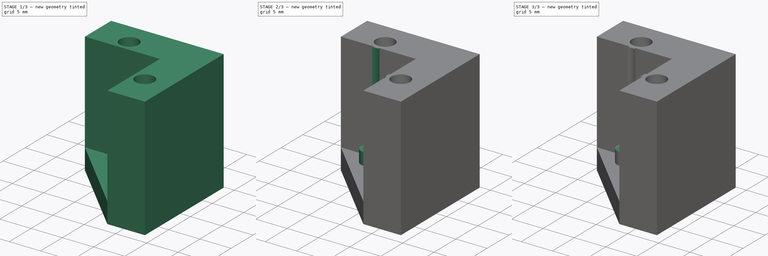
[diagram: build sequence overview — one tinted view per stage of 3, left to right]
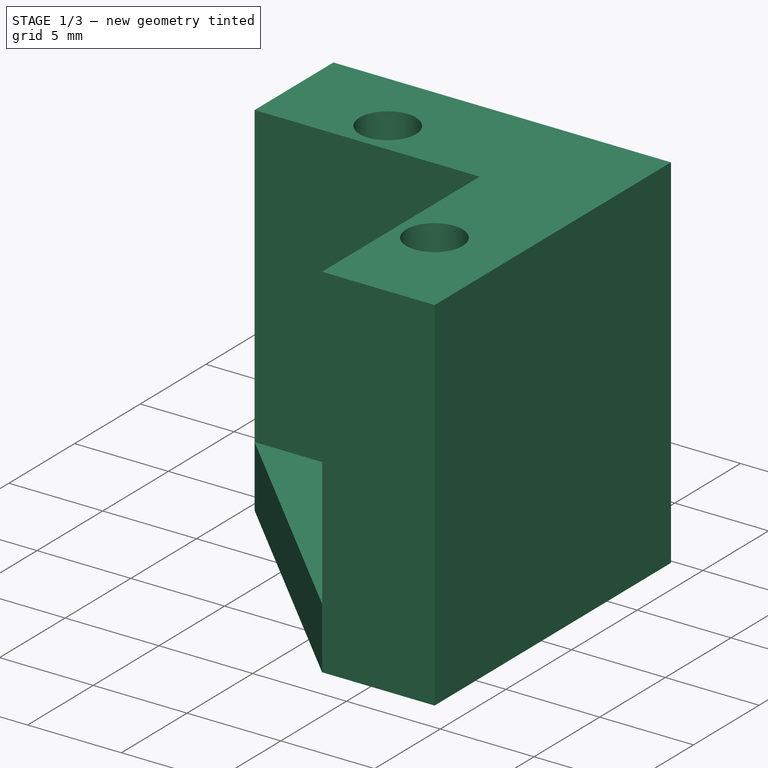
[diagram: stage 1 of 3 — iso view after this stage's code; geometry added in this stage tinted green]
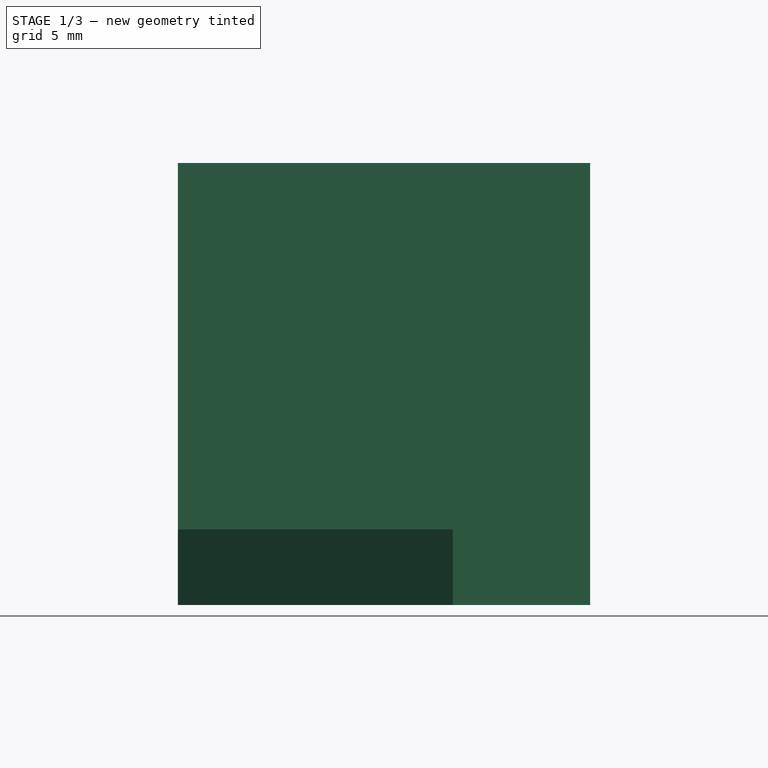
[diagram: stage 1 of 3 — front view after this stage's code; geometry added in this stage tinted green]
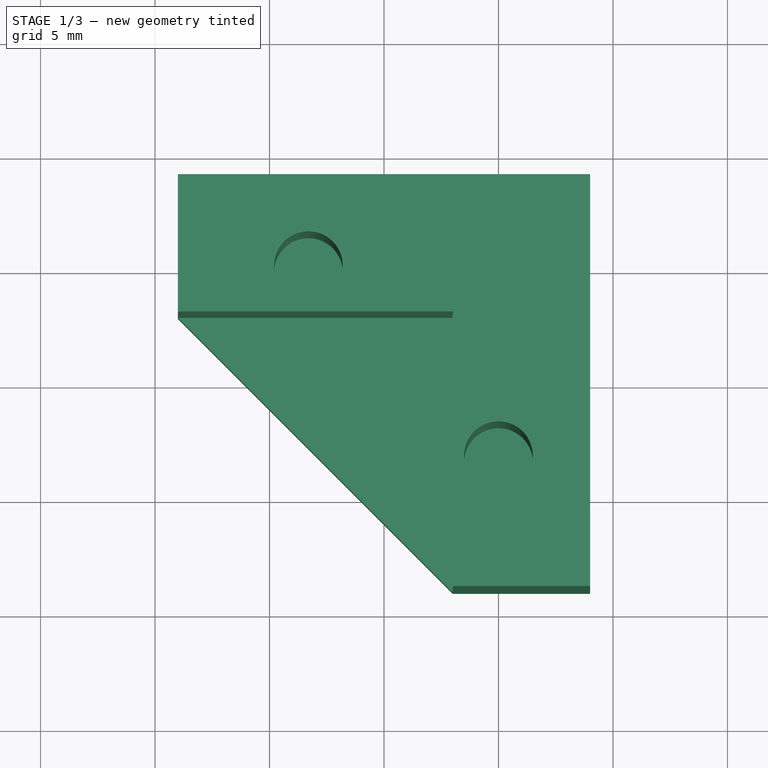
[diagram: stage 1 of 3 — top view after this stage's code; geometry added in this stage tinted green]
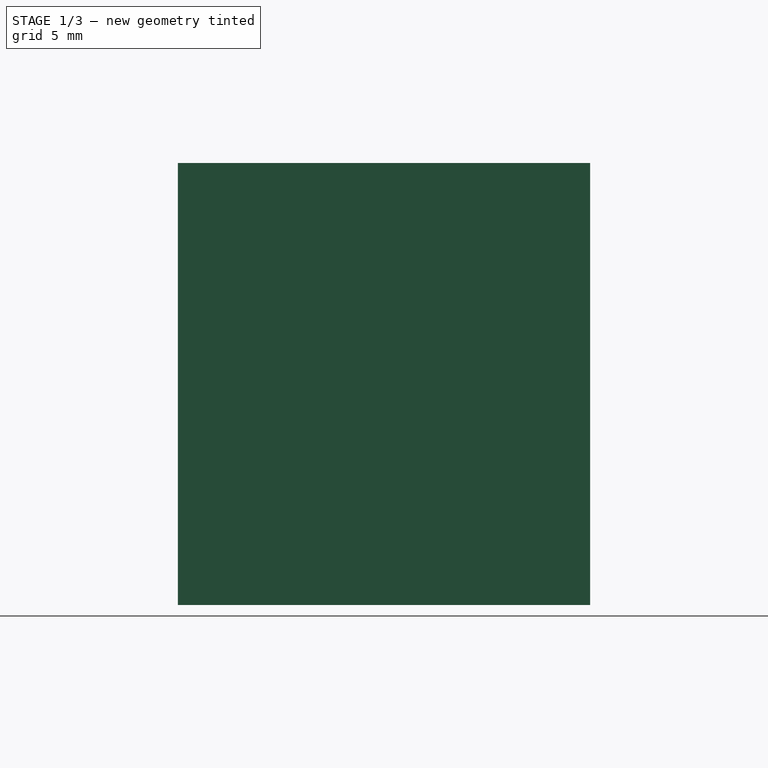
[diagram: stage 1 of 3 — right view after this stage's code; geometry added in this stage tinted green]
FCSTD DOCUMENT  (FreeCAD 0.21R33668 +26 (Git))
Label: magnet_press_jig_integrated
License: All rights reserved
LicenseURL: https://en.wikipedia.org/wiki/All_rights_reserved
objects: Sketcher::SketchObject×8, PartDesign::Plane×4, PartDesign::Pad×3, PartDesign::Pocket×3, PartDesign::Groove×1, PartDesign::Mirrored×1, PartDesign::Body×1
note: 28 computed .brp shape members not serialized (recipe doc carries the construction recipe); baked Part::Feature solids carry a one-line shape summary decoded from their .brp

FEATURE [Sketcher::SketchObject] Sketch
  FullyConstrained = true
  MapMode = 5
  Support = -> [XY_Plane]
  sketch-geometry (9):
    g0: LineSegment StartX=-9 StartY=3 StartZ=0 EndX=-9 EndY=9 EndZ=0
    g1: LineSegment StartX=-9 StartY=9 StartZ=0 EndX=9 EndY=9 EndZ=0
    g2: LineSegment StartX=9 StartY=9 StartZ=0 EndX=9 EndY=-9 EndZ=0
    g3: LineSegment StartX=9 StartY=-9 StartZ=0 EndX=3 EndY=-9 EndZ=0
    g4: GeomPoint X=0 Y=0 Z=0
    g5: LineSegment StartX=-9 StartY=3 StartZ=0 EndX=3 EndY=-9 EndZ=0
    g6: LineSegment StartX=-9 StartY=9 StartZ=0 EndX=0 EndY=0 EndZ=0
    g7: LineSegment StartX=0 StartY=0 StartZ=0 EndX=9 EndY=9 EndZ=0
    g8: LineSegment StartX=0 StartY=0 StartZ=0 EndX=9 EndY=-9 EndZ=0
  constraints (22):
    c: Coincident(g0,g1)
    c: Coincident(g1,g2)
    c: Coincident(g2,g3)
    c: Horizontal(g1)
    c: Horizontal(g3)
    c: Vertical(g0)
    c: Vertical(g2)
    c: Coincident(g4,g-1)
    c: DistanceX(g1,g1) = 18
    c: Coincident(g0,g5)
    c: Coincident(g3,g5)
    c: Equal(g3,g0)
    c: DistanceX(g3,g3) = 6
    c: Equal(g2,g1)
    c: Coincident(g6,g0)
    c: Coincident(g6,g4)
    c: Coincident(g7,g6)
    c: Coincident(g7,g1)
    c: Equal(g7,g6)
    c: Coincident(g8,g6)
    c: Coincident(g8,g2)
    c: Equal(g8,g7)
FEATURE [PartDesign::Pad] Pad
  Direction = (0,0,1)
  Length = 19.3
  Length2 = 10
  Profile = -> Sketch
  ReferenceAxis = -> Sketch [N_Axis]
  Type = 0
FEATURE [PartDesign::Plane] DatumPlane
  AttachmentOffset = pos=(0,0,3.3) rot=(0,0,1;0rad)
  Length = 60
  MapMode = 5
  Placement = pos=(0,0,3.3) rot=(0,0,1;0rad)
  ResizeMode = 0
  Support = -> [XY_Plane]
  Width = 60
FEATURE [Sketcher::SketchObject] Sketch001
  FullyConstrained = true
  MapMode = 5
  Placement = pos=(0,0,3.3) rot=(0,0,1;0rad)
  Support = -> [DatumPlane]
  sketch-geometry (3):
    g0: LineSegment StartX=-9 StartY=3 StartZ=0 EndX=3 EndY=3 EndZ=0
    g1: LineSegment StartX=3 StartY=3 StartZ=0 EndX=3 EndY=-9 EndZ=0
    g2: LineSegment StartX=3 StartY=-9 StartZ=0 EndX=-9 EndY=3 EndZ=0
  constraints (9):
    c: Horizontal(g0)
    c: Coincident(g1,g0)
    c: Vertical(g1)
    c: Coincident(g2,g1)
    c: Coincident(g2,g0)
    c: DistanceX(g0,g0) = 12
    c: Equal(g0,g1)
    c: DistanceY(g-1,g0) = 3
    c: DistanceX(g-1,g0) = 3
FEATURE [PartDesign::Pocket] Pocket
  BaseFeature = -> Pad
  Direction = (0,0,-1)
  Length = 5
  Length2 = 5
  Profile = -> Sketch001
  ReferenceAxis = -> Sketch001 [N_Axis]
  Reversed = true
  Type = 1
FEATURE [Sketcher::SketchObject] Sketch002
  FullyConstrained = true
  MapMode = 5
  Placement = pos=(0,0,3.3) rot=(0,0,1;0rad)
  Support = -> [DatumPlane]
  sketch-geometry (11):
    g0: LineSegment StartX=-3.3 StartY=1.4 StartZ=0 EndX=1.4 EndY=-3.3 EndZ=0
    g1: LineSegment StartX=-0.95 StartY=-0.95 StartZ=0 EndX=-1e-16 EndY=0 EndZ=0
    g2: GeomPoint X=3 Y=3 Z=0
    g3: ArcOfCircle CenterX=-3.3 CenterY=1.4 CenterZ=0 NormalX=0 NormalY=0 NormalZ=1 AngleXU=0 Radius=1.6 StartAngle=5.49779 EndAngle=8.63938
    g4: ArcOfCircle CenterX=1.4 CenterY=-3.3 CenterZ=0 NormalX=0 NormalY=0 NormalZ=1 AngleXU=0 Radius=1.6 StartAngle=5.49779 EndAngle=8.63938
    g5: LineSegment StartX=-4.43137 StartY=2.53137 StartZ=0 EndX=-6.69411 EndY=0.268629 EndZ=0
    g6: LineSegment StartX=-2.16863 StartY=0.268629 StartZ=0 EndX=-4.43137 EndY=-1.99411 EndZ=0
    g7: LineSegment StartX=0.268629 StartY=-2.16863 StartZ=0 EndX=-1.99411 EndY=-4.43137 EndZ=0
    g8: LineSegment StartX=2.53137 StartY=-4.43137 StartZ=0 EndX=0.268629 EndY=-6.69411 EndZ=0
    g9: LineSegment StartX=0.268629 StartY=-6.69411 StartZ=0 EndX=-1.99411 EndY=-4.43137 EndZ=0
    g10: LineSegment StartX=-4.43137 StartY=-1.99411 StartZ=0 EndX=-6.69411 EndY=0.268629 EndZ=0
  constraints (30):
    c: Angle(g-2,g0) = 0.785398
    c: Coincident(g1,g-1)
    c: Perpendicular(g0,g1)
    c: DistanceX(g1,g2) = 3
    c: DistanceY(g1,g2) = 3
    c: Coincident(g3,g0)
    c: Coincident(g4,g0)
    c: Symmetric(g3,g4,g1)
    c: DistanceX(g3,g2) = 6.3
    c: DistanceY(g3,g2) = 1.6
    c: Diameter(g4) = 3.2
    c: Equal(g4,g3)
    c: Coincident(g9,g8)
    c: Coincident(g9,g7)
    c: Coincident(g10,g6)
    c: Coincident(g10,g5)
    c: Tangent(g6,g3) = 1.5708
    c: Tangent(g7,g4) = -1.5708
    c: Perpendicular(g9,g7)
    c: Perpendicular(g8,g9)
    c: PointOnObject(g7,g0)
    c: PointOnObject(g6,g0)
    c: Equal(g9,g7)
    c: Equal(g7,g6)
    c: Perpendicular(g5,g10)
    c: Perpendicular(g6,g10)
    c: Tangent(g3,g5) = -1.5708
    c: PointOnObject(g3,g0)
    c: PointOnObject(g4,g0)
    c: Tangent(g4,g8) = 1.5708
FEATURE [PartDesign::Plane] DatumPlane001
  AttachmentOffset = pos=(0,0,19.3) rot=(0,0,1;0rad)
  Length = 60
  MapMode = 5
  Placement = pos=(0,0,19.3) rot=(0,0,1;0rad)
  ResizeMode = 0
  Support = -> [XY_Plane]
  Width = 60
FEATURE [Sketcher::SketchObject] Sketch003
  FullyConstrained = true
  MapMode = 5
  Placement = pos=(0,0,19.3) rot=(0,0,1;0rad)
  Support = -> [DatumPlane001]
  sketch-geometry (5):
    g0: Circle CenterX=-3.3 CenterY=5 CenterZ=0 NormalX=0 NormalY=0 NormalZ=1 AngleXU=0 Radius=1.5
    g1: Circle CenterX=5 CenterY=-3.3 CenterZ=0 NormalX=0 NormalY=0 NormalZ=1 AngleXU=0 Radius=1.5
    g2: LineSegment StartX=-3.3 StartY=5 StartZ=0 EndX=5 EndY=-3.3 EndZ=0
    g3: LineSegment StartX=0 StartY=0 StartZ=0 EndX=0.85 EndY=0.85 EndZ=0
    g4: GeomPoint X=3 Y=3 Z=0
  constraints (12):
    c: Coincident(g2,g0)
    c: Coincident(g2,g1)
    c: Equal(g0,g1)
    c: Diameter(g0) = 3
    c: DistanceY(g-1,g0) = 5
    c: Angle(g-2,g2) = 0.785398
    c: Coincident(g3,g-1)
    c: Perpendicular(g2,g3)
    c: Symmetric(g1,g0,g3)
    c: DistanceY(g-1,g4) = 3
    c: DistanceX(g3,g4) = 3
    c: DistanceX(g0,g4) = 6.3
FEATURE [PartDesign::Pocket] Pocket003
  BaseFeature = -> Pocket
  Direction = (0,0,-1)
  Length = 17.3
  Length2 = 5
  Profile = -> Sketch003
  ReferenceAxis = -> Sketch003 [N_Axis]
  Type = 0
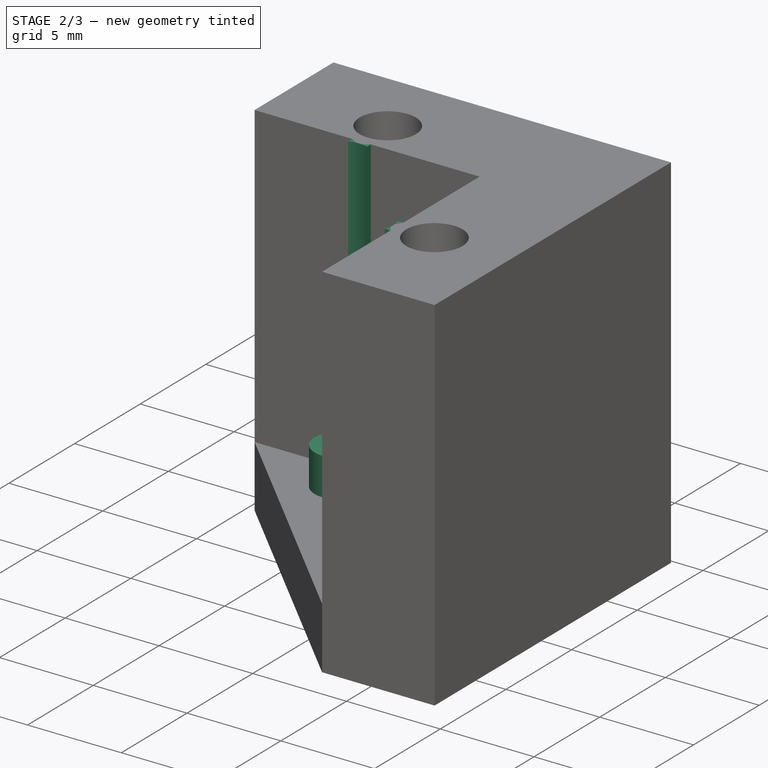
[diagram: stage 2 of 3 — iso view after this stage's code; geometry added in this stage tinted green]
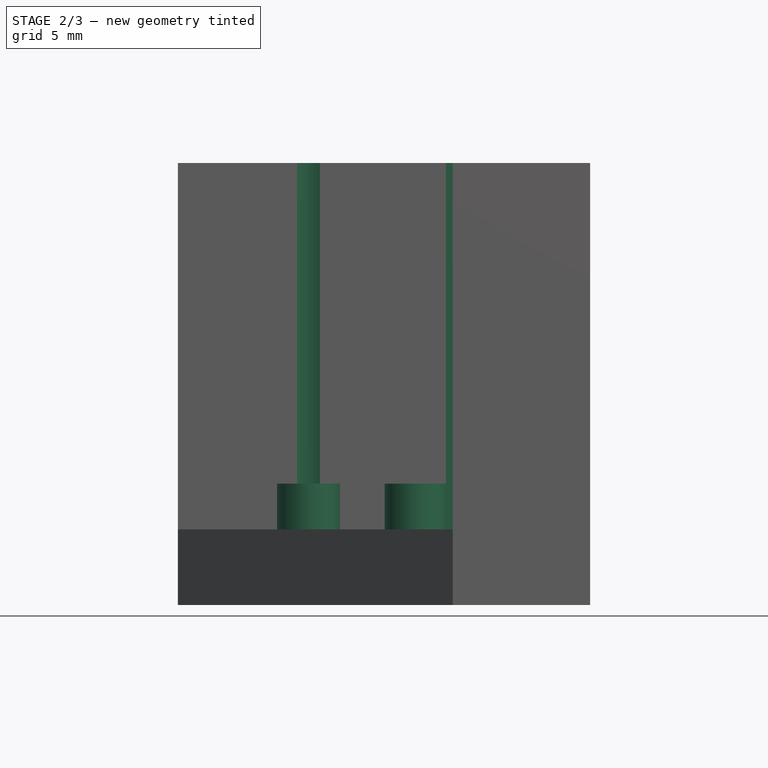
[diagram: stage 2 of 3 — front view after this stage's code; geometry added in this stage tinted green]
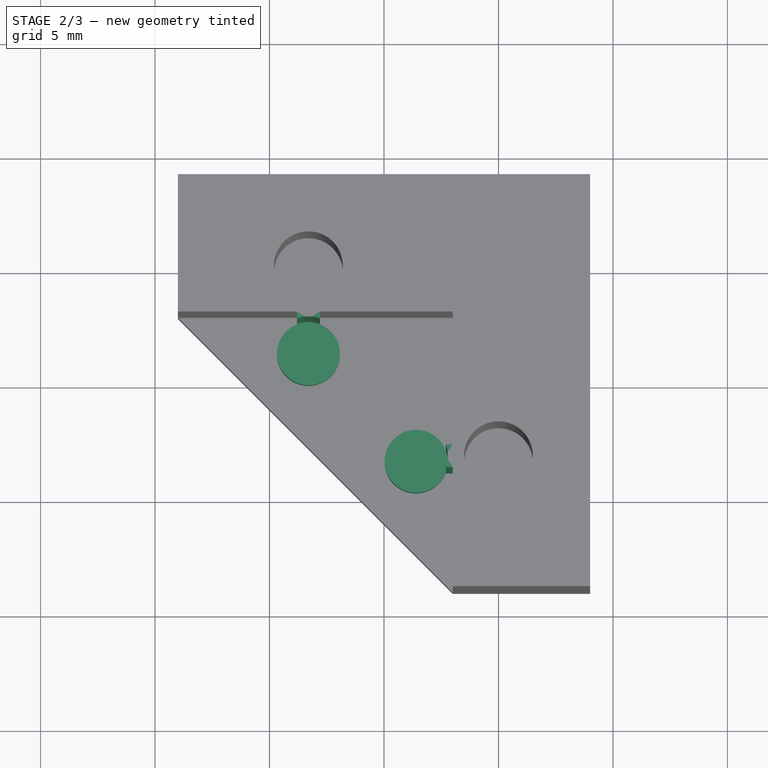
[diagram: stage 2 of 3 — top view after this stage's code; geometry added in this stage tinted green]
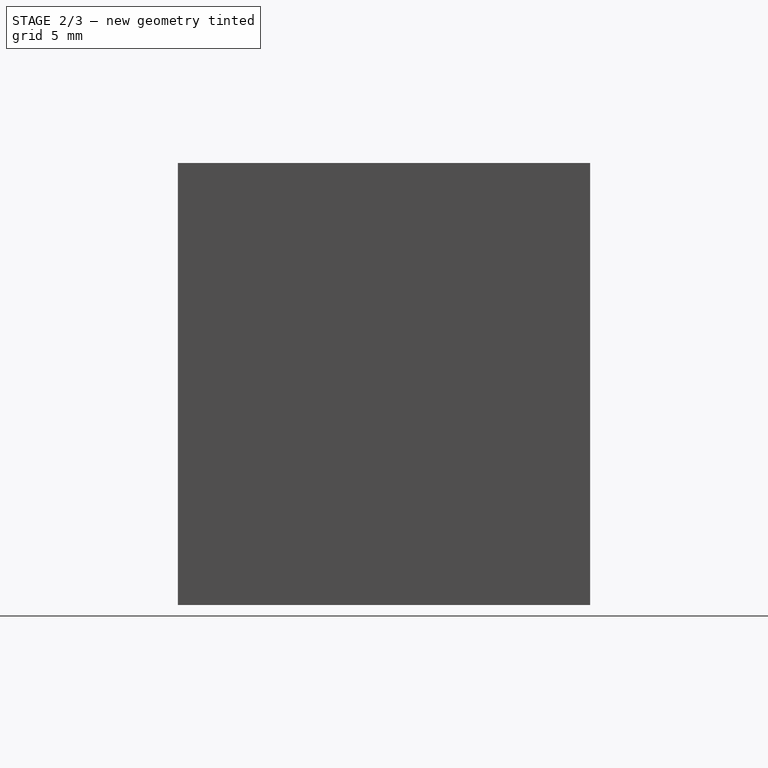
[diagram: stage 2 of 3 — right view after this stage's code; geometry added in this stage tinted green]
FEATURE [Sketcher::SketchObject] Sketch004
  FullyConstrained = true
  MapMode = 5
  Placement = pos=(0,0,19.3) rot=(0,0,1;0rad)
  Support = -> [DatumPlane001]
  sketch-geometry (11):
    g0: LineSegment StartX=-3.8 StartY=3 StartZ=0 EndX=-2.8 EndY=3 EndZ=0
    g1: LineSegment StartX=-2.8 StartY=3 StartZ=0 EndX=-2.8 EndY=2.7 EndZ=0
    g2: LineSegment StartX=-3.8 StartY=2.7 StartZ=0 EndX=-3.8 EndY=3 EndZ=0
    g3: LineSegment StartX=3 StartY=-2.8 StartZ=0 EndX=2.7 EndY=-2.8 EndZ=0
    g4: LineSegment StartX=2.7 StartY=-3.8 StartZ=0 EndX=3 EndY=-3.8 EndZ=0
    g5: LineSegment StartX=3 StartY=-3.8 StartZ=0 EndX=3 EndY=-2.8 EndZ=0
    g6: ArcOfCircle CenterX=-3.3 CenterY=1.28579 CenterZ=0 NormalX=0 NormalY=0 NormalZ=1 AngleXU=0 Radius=1.5 StartAngle=1.23096 EndAngle=1.91063
    g7: ArcOfCircle CenterX=1.28579 CenterY=-3.3 CenterZ=0 NormalX=0 NormalY=0 NormalZ=1 AngleXU=0 Radius=1.5 StartAngle=5.94335 EndAngle=6.62302
    g8: LineSegment StartX=-3.3 StartY=1.28579 StartZ=0 EndX=1.28579 EndY=-3.3 EndZ=0
    g9: LineSegment StartX=0 StartY=0 StartZ=0 EndX=-1.00711 EndY=-1.00711 EndZ=0
    g10: GeomPoint X=3 Y=3 Z=0
  constraints (32):
    c: Coincident(g0,g1)
    c: Coincident(g2,g0)
    c: Horizontal(g0)
    c: Vertical(g1)
    c: Vertical(g2)
    c: Coincident(g4,g5)
    c: Coincident(g5,g3)
    c: Horizontal(g3)
    c: Horizontal(g4)
    c: Vertical(g5)
    c: Coincident(g6,g2)
    c: Coincident(g6,g1)
    c: Coincident(g7,g3)
    c: Equal(g6,g7)
    c: Coincident(g4,g7)
    c: Coincident(g8,g6)
    c: Coincident(g8,g7)
    c: Coincident(g9,g-1)
    c: Perpendicular(g8,g9)
    c: Symmetric(g6,g7,g9)
    c: Angle(g-2,g8) = 0.785398
    c: Equal(g1,g4)
    c: Equal(g3,g4)
    c: Equal(g2,g1)
    c: Diameter(g6) = 3
    c: DistanceX(g9,g10) = 3
    c: DistanceY(g9,g10) = 3
    c: DistanceX(g6,g10) = 6.3
    c: Equal(g5,g0)
    c: DistanceX(g0,g0) = 1
    c: DistanceY(g2,g2) = 0.3
    c: Horizontal(g0,g10)
FEATURE [PartDesign::Pad] Pad001
  BaseFeature = -> Pocket003
  Direction = (0,0,1)
  Length = 10
  Length2 = 10
  Profile = -> Sketch004
  ReferenceAxis = -> Sketch004 [N_Axis]
  Reversed = true
  Type = 2
FEATURE [Sketcher::SketchObject] Sketch005
  FullyConstrained = true
  MapMode = 5
  Placement = pos=(0,0,3.3) rot=(0,0,1;0rad)
  Support = -> [DatumPlane]
  sketch-geometry (13):
    g0: ArcOfCircle CenterX=-3.3 CenterY=1.4 CenterZ=0 NormalX=0 NormalY=0 NormalZ=1 AngleXU=0 Radius=1.375 StartAngle=1.94296 EndAngle=7.48181
    g1: ArcOfCircle CenterX=1.4 CenterY=-3.3 CenterZ=0 NormalX=0 NormalY=0 NormalZ=1 AngleXU=0 Radius=1.375 StartAngle=0.372169 EndAngle=5.91102
    g2: LineSegment StartX=-3.3 StartY=1.4 StartZ=0 EndX=1.4 EndY=-3.3 EndZ=0
    g3: LineSegment StartX=0 StartY=0 StartZ=0 EndX=-0.95 EndY=-0.95 EndZ=0
    g4: GeomPoint X=3 Y=3 Z=0
    g5: LineSegment StartX=-3.8 StartY=2.68087 StartZ=0 EndX=-3.8 EndY=3 EndZ=0
    g6: LineSegment StartX=-3.8 StartY=3 StartZ=0 EndX=-2.8 EndY=3 EndZ=0
    g7: LineSegment StartX=-2.8 StartY=3 StartZ=0 EndX=-2.8 EndY=2.68087 EndZ=0
    g8: GeomPoint X=-3.3 Y=1.4 Z=0
    g9: LineSegment StartX=2.68087 StartY=-3.8 StartZ=0 EndX=3 EndY=-3.8 EndZ=0
    g10: LineSegment StartX=3 StartY=-3.8 StartZ=0 EndX=3 EndY=-2.8 EndZ=0
    g11: LineSegment StartX=3 StartY=-2.8 StartZ=0 EndX=2.68087 EndY=-2.8 EndZ=0
    g12: GeomPoint X=1.4 Y=-3.3 Z=0
  constraints (34):
    c: Coincident(g2,g0)
    c: Coincident(g1,g2)
    c: Coincident(g3,g-1)
    c: Symmetric(g0,g1,g3)
    c: Perpendicular(g2,g3)
    c: DistanceX(g3,g4) = 3
    c: DistanceY(g-1,g4) = 3
    c: DistanceX(g0,g4) = 6.3
    c: DistanceY(g0,g4) = 1.6
    c: Diameter(g1) = 2.75
    c: Equal(g1,g0)
    c: Angle(g-2,g2) = 0.785398
    c: Coincident(g5,g6)
    c: Coincident(g6,g7)
    c: Horizontal(g6)
    c: Vertical(g5)
    c: Vertical(g7)
    c: Coincident(g8,g0)
    c: Coincident(g9,g10)
    c: Coincident(g10,g11)
    c: Horizontal(g9)
    c: Horizontal(g11)
    c: Vertical(g10)
    c: Coincident(g12,g1)
    c: Equal(g6,g10)
    c: DistanceX(g6,g6) = 1
    c: Coincident(g0,g7)
    c: Coincident(g0,g5)
    c: Equal(g5,g7)
    c: Horizontal(g6,g4)
    c: Coincident(g1,g9)
    c: Coincident(g1,g11)
    c: Equal(g11,g9)
    c: Vertical(g10,g4)
FEATURE [PartDesign::Pad] Pad002
  BaseFeature = -> Pad001
  Direction = (0,0,1)
  Length = 2
  Length2 = 10
  Profile = -> Sketch005
  ReferenceAxis = -> Sketch005 [N_Axis]
  Refine = true
  Type = 0
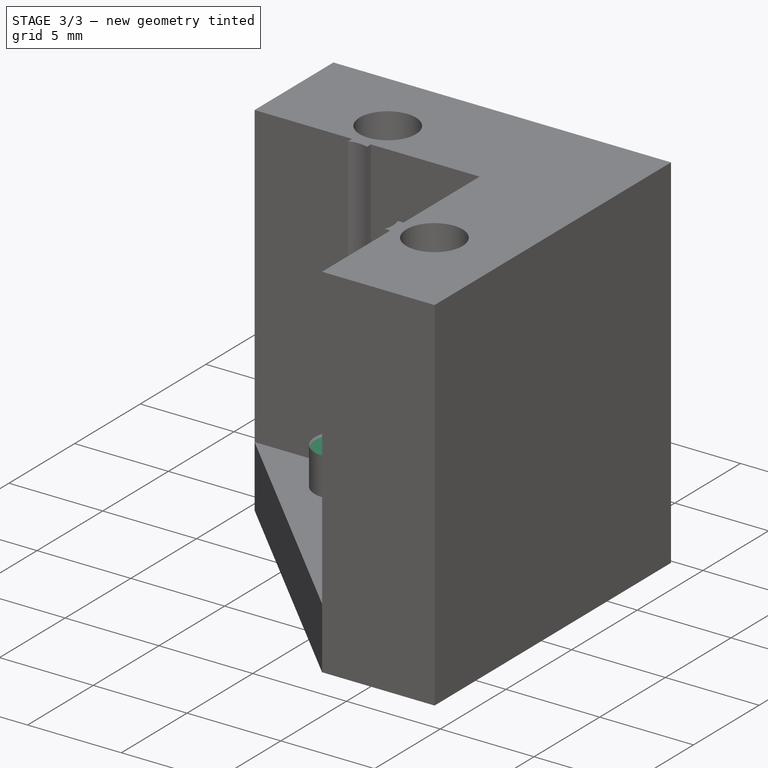
[diagram: stage 3 of 3 — iso view after this stage's code; geometry added in this stage tinted green]
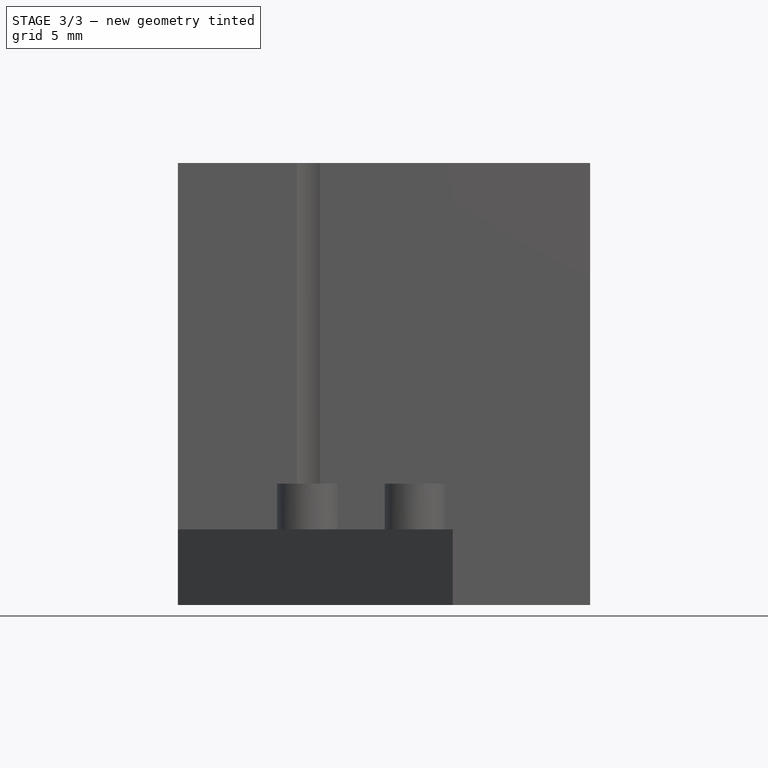
[diagram: stage 3 of 3 — front view after this stage's code; geometry added in this stage tinted green]
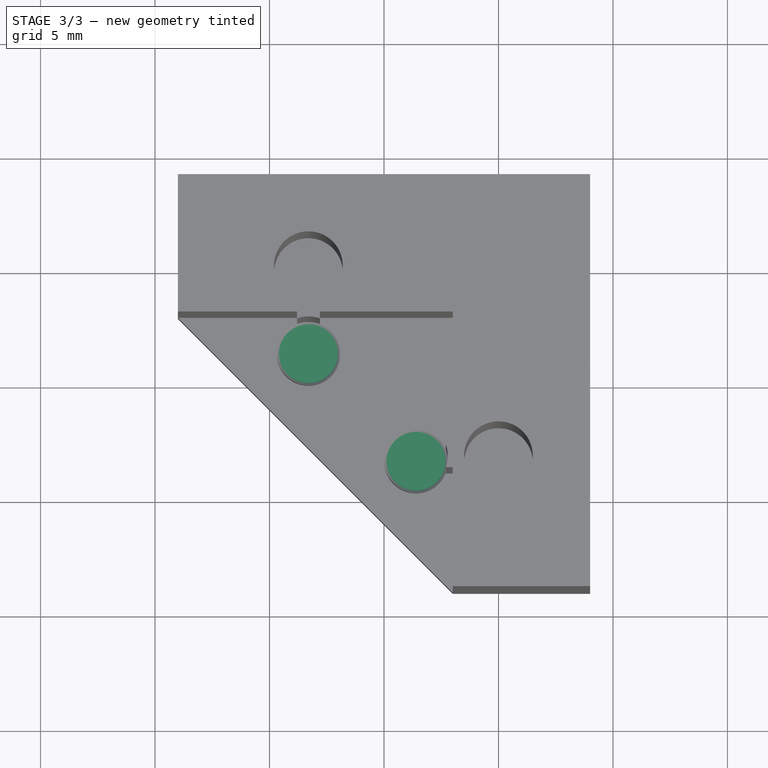
[diagram: stage 3 of 3 — top view after this stage's code; geometry added in this stage tinted green]
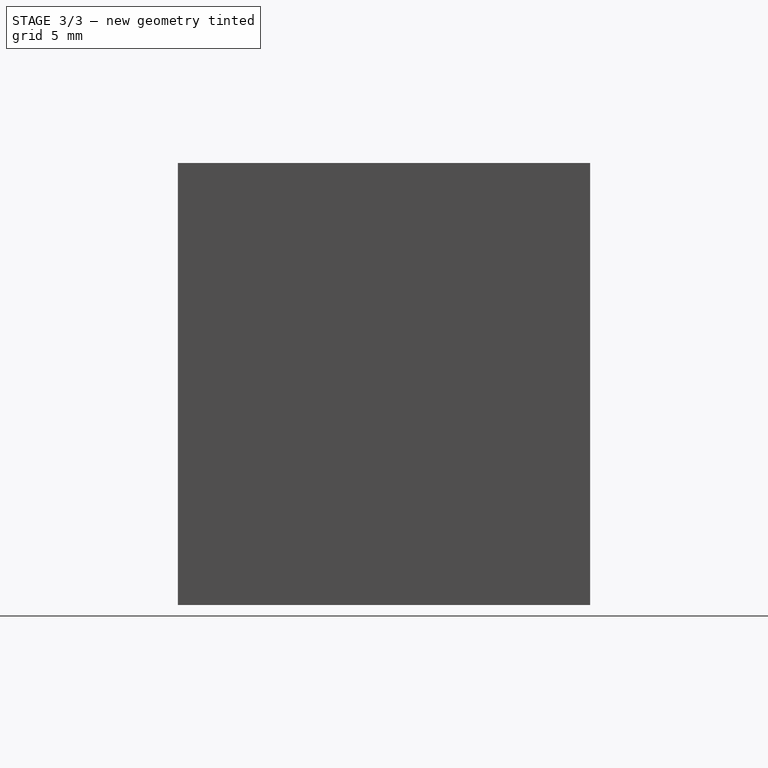
[diagram: stage 3 of 3 — right view after this stage's code; geometry added in this stage tinted green]
FEATURE [PartDesign::Plane] DatumPlane002
  AttachmentOffset = pos=(0,0,3.3) rot=(0,0,1;0rad)
  Length = 60
  MapMode = 5
  Placement = pos=(0,-3.3,-7e-16) rot=(1,0,0;1.5708rad)
  ResizeMode = 0
  Support = -> [XZ_Plane]
  Width = 60
FEATURE [Sketcher::SketchObject] Sketch006
  FullyConstrained = true
  MapMode = 5
  Placement = pos=(0,-3.3,-7e-16) rot=(1,0,0;1.5708rad)
  Support = -> [DatumPlane002]
  sketch-geometry (5):
    g0: LineSegment StartX=0.025 StartY=5.3 StartZ=0 EndX=0.110355 EndY=5.21464 EndZ=0
    g1: LineSegment StartX=0.145711 StartY=5.2 StartZ=0 EndX=1.4 EndY=5.2 EndZ=0
    g2: LineSegment StartX=1.4 StartY=5.3 StartZ=0 EndX=0.025 EndY=5.3 EndZ=0
    g3: ArcOfCircle CenterX=0.145711 CenterY=5.25 CenterZ=0 NormalX=0 NormalY=0 NormalZ=1 AngleXU=0 Radius=0.05 StartAngle=3.92699 EndAngle=4.71239
    g4: LineSegment StartX=1.4 StartY=5.3 StartZ=0 EndX=1.4 EndY=5.2 EndZ=0
  constraints (14):
    c: Horizontal(g1)
    c: Horizontal(g2)
    c: Coincident(g0,g2)
    c: Tangent(g0,g3) = -1.5708
    c: Tangent(g1,g3) = -1.5708
    c: Vertical(g4)
    c: Coincident(g2,g4)
    c: Coincident(g1,g4)
    c: Diameter(g3) = 0.1
    c: DistanceY(g-1,g2) = 5.3
    c: DistanceX(g2,g2) = 1.375
    c: DistanceX(g-1,g2) = 1.4
    c: DistanceY(g4,g4) = 0.1
    c: Angle(g0,g2) = 0.785398
FEATURE [PartDesign::Groove] Groove
  Angle = 360
  Axis = (0,2e-16,-1)
  Base = (1.4,-3.3,5.3)
  BaseFeature = -> Pad002
  Profile = -> Sketch006
  ReferenceAxis = -> Sketch006 [Edge5]
FEATURE [PartDesign::Plane] DatumPlane003
  AttachmentOffset = pos=(0,0,0) rot=(0,1,0;0.785398rad)
  Length = 82.6027
  MapMode = 5
  Placement = pos=(0,0,0) rot=(0.862856,0.357407,0.357407;1.71777rad)
  ResizeMode = 0
  Support = -> [XZ_Plane]
  Width = 61.8921
FEATURE [PartDesign::Mirrored] Mirrored
  BaseFeature = -> Groove
  MirrorPlane = -> DatumPlane003
  Originals = -> [Groove]
FEATURE [Sketcher::SketchObject] Sketch007
  FullyConstrained = true
  MapMode = 5
  Support = -> [XY_Plane]
  sketch-geometry (2):
    g0: GeomPoint X=3 Y=3 Z=0
    g1: Circle CenterX=-0.3 CenterY=-0.3 CenterZ=0 NormalX=0 NormalY=0 NormalZ=1 AngleXU=0 Radius=2.4
  constraints (5):
    c: DistanceY(g-1,g0) = 3
    c: DistanceX(g-1,g0) = 3
    c: Diameter(g1) = 4.8
    c: DistanceX(g1,g0) = 3.3
    c: DistanceY(g1,g0) = 3.3
FEATURE [PartDesign::Pocket] Pocket004
  BaseFeature = -> Mirrored
  Direction = (0,0,-1)
  Length = 3
  Length2 = 5
  Profile = -> Sketch007
  ReferenceAxis = -> Sketch007 [N_Axis]
  Reversed = true
  Type = 0
FEATURE [PartDesign::Body] Body
  Group = -> [Sketch,Pad,DatumPlane,Sketch001,Pocket,Sketch002,DatumPlane001,Sketch003,Pocket003,Sketch004,Pad001,Sketch005,Pad002,DatumPlane002,Sketch006,Groove,DatumPlane003,Mirrored,Sketch007,Pocket004]
  Origin = -> Origin
  Tip = -> Pocket004
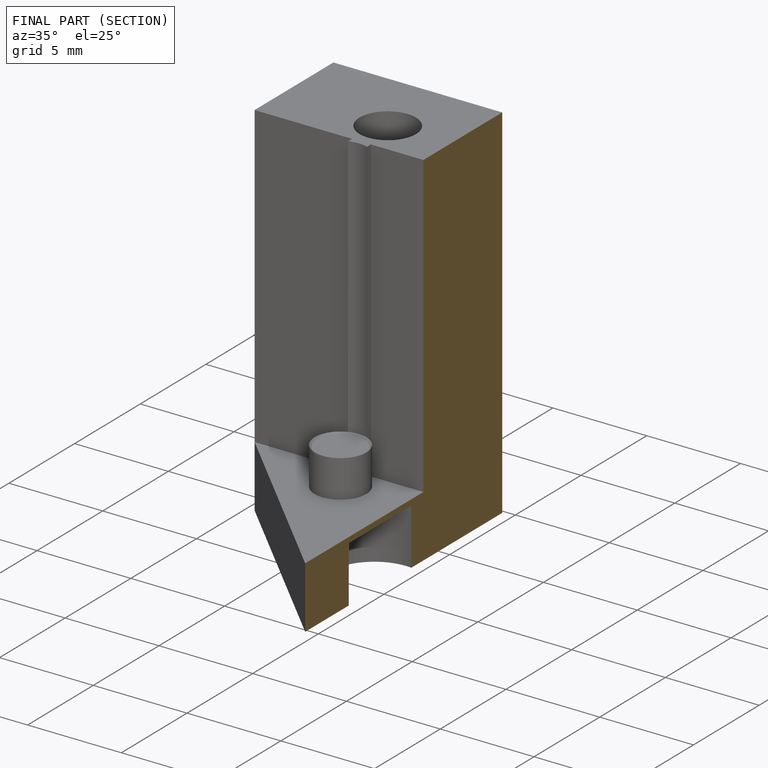
[diagram: finished part — half-section view (interior)]
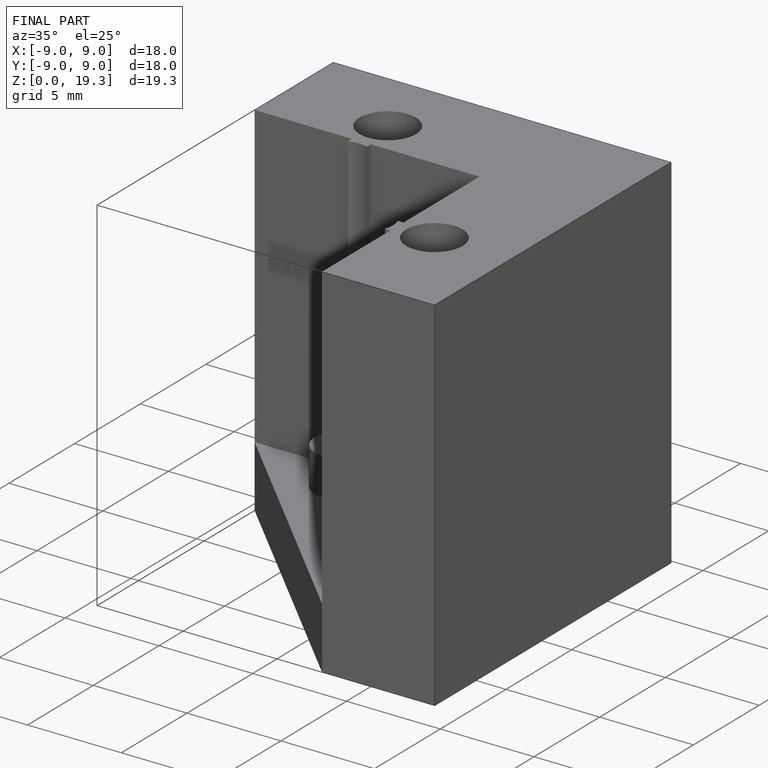
[diagram: finished part — iso view with bounding-box wireframe]
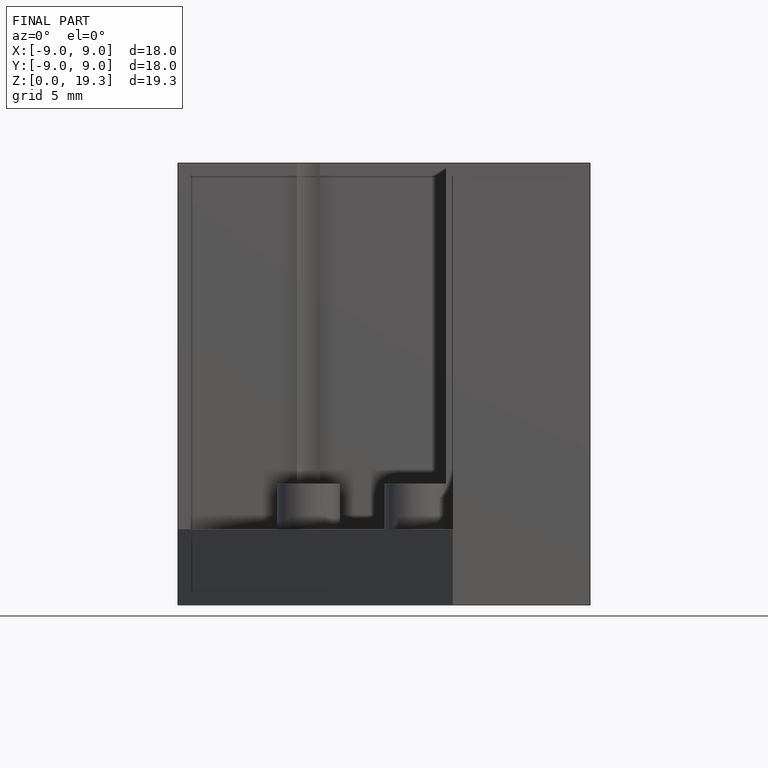
[diagram: finished part — front view with bounding-box wireframe]
